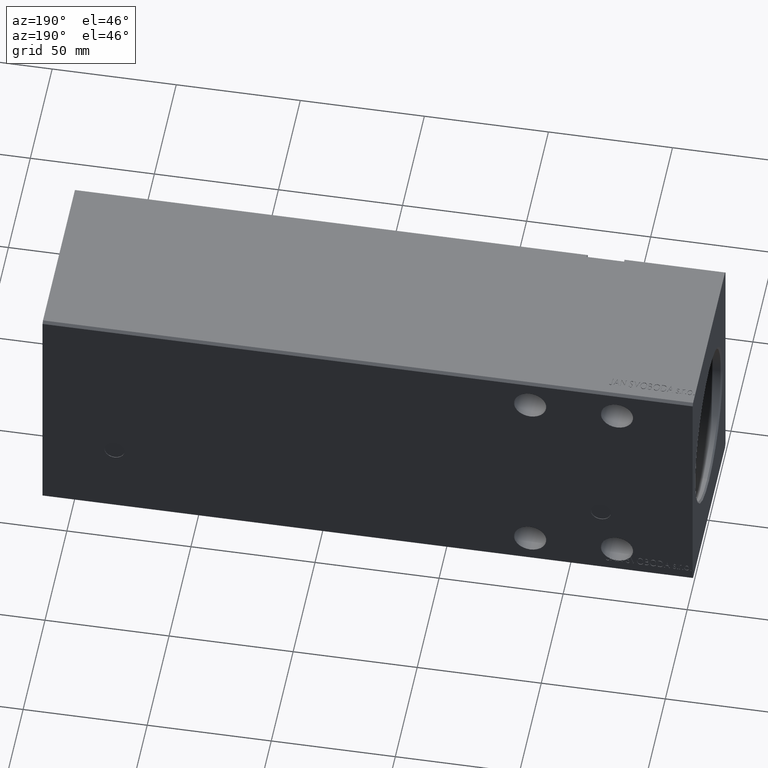
[diagram: clean part render]
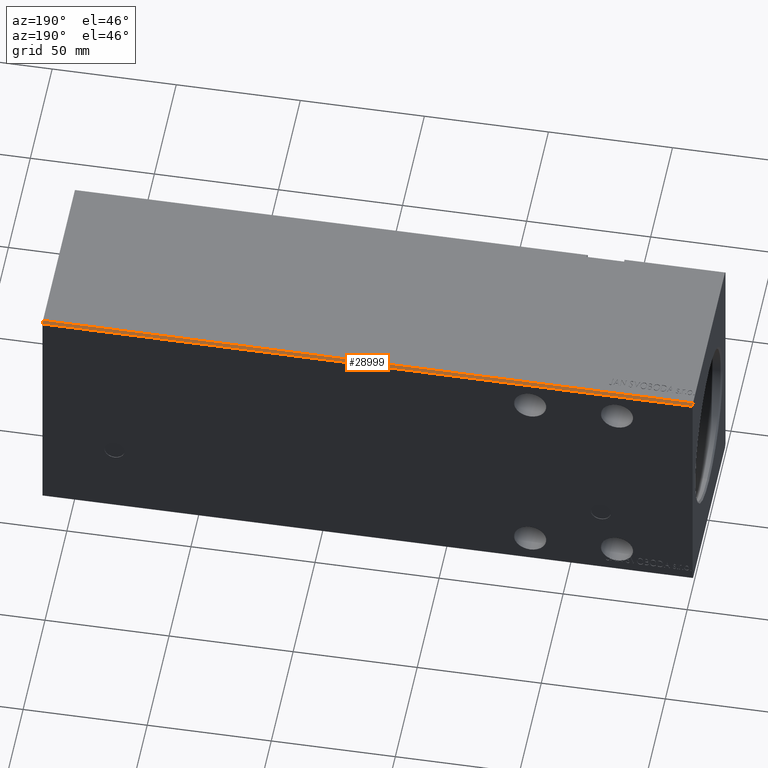
[diagram: same view with one face highlighted and labeled with its STEP entity id]
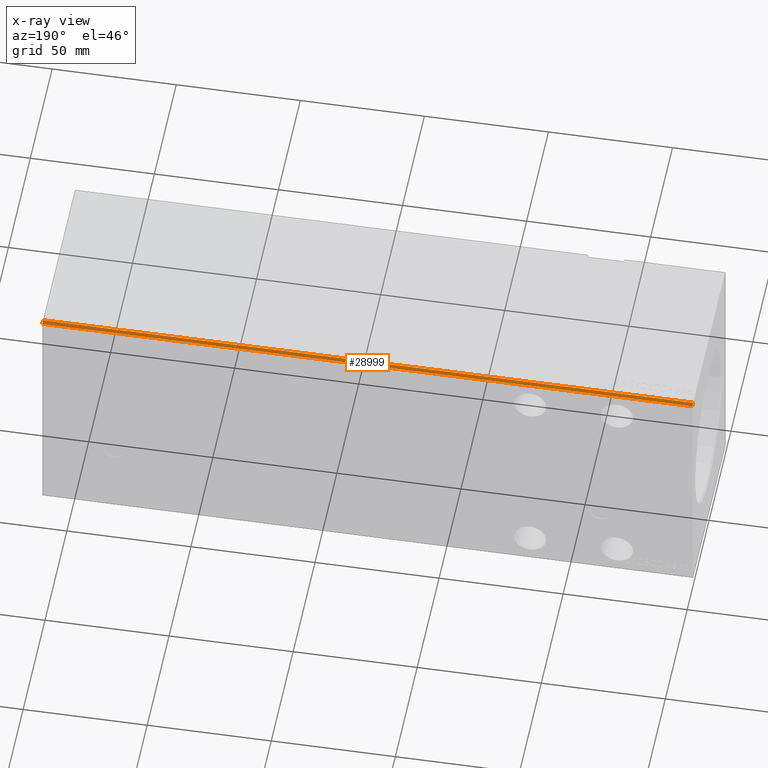
[diagram: x-ray of the same camera — body ghosted, the highlighted face saturated]
A machine part, auxiliary view. The second image highlights one B-rep face of the part: STEP entity #28999.
The next image is the same camera in x-ray: the body ghosted, the highlighted face saturated — about 0% of this face is hidden behind the body in this view.
In plain terms, the highlighted planar face has unit normal (0, -0.7071, -0.7071).
Its self-contained STEP definition (entity closure, byte-faithful):
#547 = CARTESIAN_POINT ( 'NONE',  ( 262.0000000000000000, 37.50000000000000711, 49.00000000000000000 ) ) ;
#1838 = CARTESIAN_POINT ( 'NONE',  ( 262.0000000000000000, 37.50000000000000711, 49.00000000000000000 ) ) ;
#5527 = VECTOR ( 'NONE', #40317, 1000.000000000000000 ) ;
#5740 = FACE_OUTER_BOUND ( 'NONE', #7250, .T. ) ;
#6349 = DIRECTION ( 'NONE',  ( 0.000000000000000000, -0.7071067811865475727, -0.7071067811865475727 ) ) ;
#7250 = EDGE_LOOP ( 'NONE', ( #26203, #40041, #24158, #29090 ) ) ;
#7574 = VERTEX_POINT ( 'NONE', #28876 ) ;
#7580 = AXIS2_PLACEMENT_3D ( 'NONE', #31039, #6349, #40579 ) ;
#8197 = EDGE_CURVE ( 'NONE', #8768, #19356, #24545, .T. ) ;
#8242 = LINE ( 'NONE', #1838, #34068 ) ;
#8285 = VECTOR ( 'NONE', #19707, 1000.000000000000114 ) ;
#8768 = VERTEX_POINT ( 'NONE', #31940 ) ;
#8840 = PLANE ( 'NONE',  #7580 ) ;
#10522 = EDGE_CURVE ( 'NONE', #7574, #12949, #8242, .T. ) ;
#10749 = DIRECTION ( 'NONE',  ( -1.000000000000000000, -0.000000000000000000, -0.000000000000000000 ) ) ;
#11906 = CARTESIAN_POINT ( 'NONE',  ( 0.000000000000000000, 37.50000000000000711, 49.00000000000000000 ) ) ;
#12747 = EDGE_CURVE ( 'NONE', #7574, #8768, #31642, .T. ) ;
#12949 = VERTEX_POINT ( 'NONE', #11906 ) ;
#17687 = CARTESIAN_POINT ( 'NONE',  ( 262.0000000000000000, 36.50000000000000711, 50.00000000000000000 ) ) ;
#19015 = CARTESIAN_POINT ( 'NONE',  ( 0.000000000000000000, 36.50000000000000711, 50.00000000000000000 ) ) ;
#19356 = VERTEX_POINT ( 'NONE', #19015 ) ;
#19707 = DIRECTION ( 'NONE',  ( 0.000000000000000000, -0.7071067811865474617, 0.7071067811865474617 ) ) ;
#24158 = ORIENTED_EDGE ( 'NONE', *, *, #12747, .F. ) ;
#24545 = LINE ( 'NONE', #17687, #5527 ) ;
#26203 = ORIENTED_EDGE ( 'NONE', *, *, #37304, .T. ) ;
#28042 = LINE ( 'NONE', #40711, #8285 ) ;
#28876 = CARTESIAN_POINT ( 'NONE',  ( 262.0000000000000000, 37.50000000000000711, 49.00000000000000000 ) ) ;
#28999 = ADVANCED_FACE ( 'NONE', ( #5740 ), #8840, .F. ) ;
#29090 = ORIENTED_EDGE ( 'NONE', *, *, #10522, .T. ) ;
#31039 = CARTESIAN_POINT ( 'NONE',  ( 262.0000000000000000, 37.50000000000000711, 49.00000000000000000 ) ) ;
#31642 = LINE ( 'NONE', #547, #40741 ) ;
#31940 = CARTESIAN_POINT ( 'NONE',  ( 262.0000000000000000, 36.50000000000000711, 50.00000000000000000 ) ) ;
#34068 = VECTOR ( 'NONE', #10749, 1000.000000000000000 ) ;
#37304 = EDGE_CURVE ( 'NONE', #12949, #19356, #28042, .T. ) ;
#38070 = DIRECTION ( 'NONE',  ( 0.000000000000000000, -0.7071067811865474617, 0.7071067811865474617 ) ) ;
#40041 = ORIENTED_EDGE ( 'NONE', *, *, #8197, .F. ) ;
#40317 = DIRECTION ( 'NONE',  ( -1.000000000000000000, -0.000000000000000000, -0.000000000000000000 ) ) ;
#40579 = DIRECTION ( 'NONE',  ( 0.000000000000000000, 0.7071067811865474617, -0.7071067811865474617 ) ) ;
#40711 = CARTESIAN_POINT ( 'NONE',  ( 0.000000000000000000, 37.50000000000000711, 49.00000000000000000 ) ) ;
#40741 = VECTOR ( 'NONE', #38070, 1000.000000000000114 ) ;